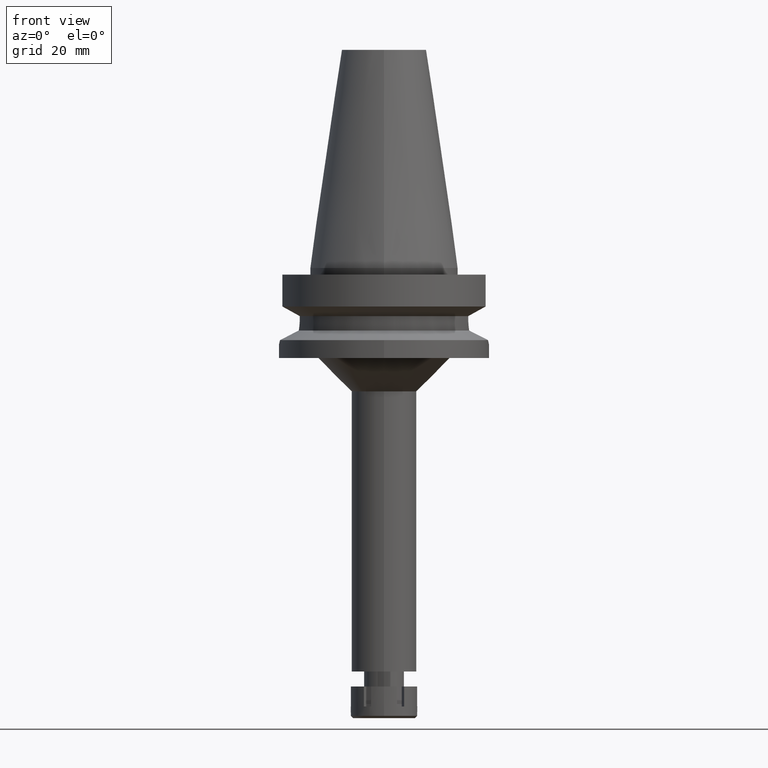
[diagram: clean part render]
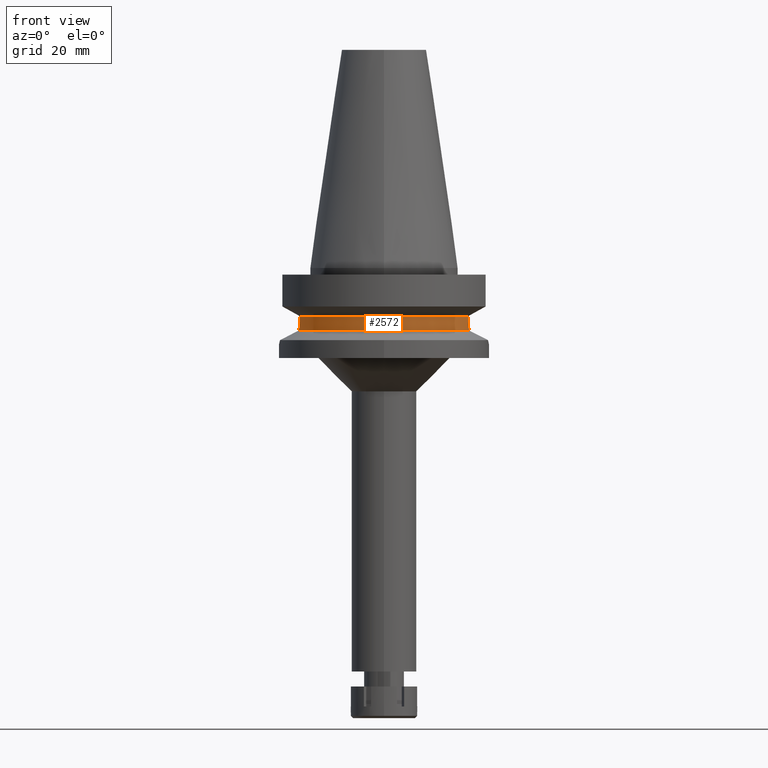
[diagram: same view with one face highlighted and labeled with its STEP entity id]
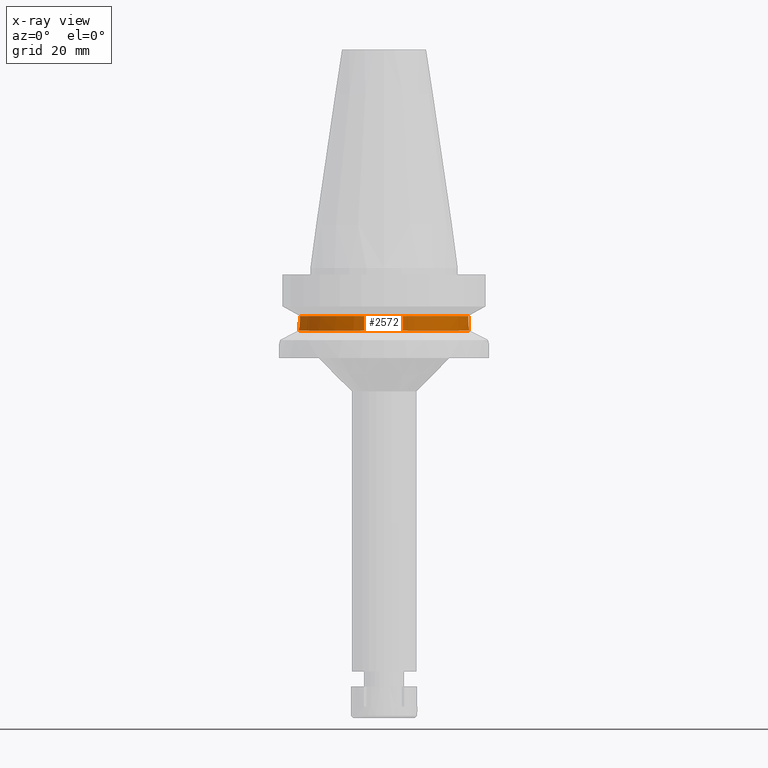
[diagram: x-ray of the same camera — body ghosted, the highlighted face saturated]
A machine part, front view. The second image highlights one B-rep face of the part: STEP entity #2572.
The next image is the same camera in x-ray: the body ghosted, the highlighted face saturated — about 0% of this face is hidden behind the body in this view.
In plain terms, the highlighted cylindrical surface (partial cylindrical patch) has radius 26.5 mm, axis along (0, 0, -1).
Its self-contained STEP definition (entity closure, byte-faithful):
#12 = CARTESIAN_POINT ( 'NONE',  ( 25.27269700110156236, -7.971767412699254152, -16.08147680843536875 ) ) ;
#15 = CIRCLE ( 'NONE', #2923, 26.50000000000000711 ) ;
#48 = CARTESIAN_POINT ( 'NONE',  ( 25.30215890781840216, -7.877570599496765524, -16.61088255778459200 ) ) ;
#54 = CARTESIAN_POINT ( 'NONE',  ( -25.34387143294821954, -7.742373311504515243, -17.15653003748771965 ) ) ;
#66 = CARTESIAN_POINT ( 'NONE',  ( 25.36818832152583170, -7.663695285298411264, -17.48840541843383534 ) ) ;
#91 = CARTESIAN_POINT ( 'NONE',  ( -25.53175183775000079, -7.097862220092999941, -18.74774300138999905 ) ) ;
#104 = CARTESIAN_POINT ( 'NONE',  ( 25.24772266958000344, -8.050000000000000711, -14.45225699861000024 ) ) ;
#122 = CARTESIAN_POINT ( 'NONE',  ( 25.24772216360999977, -8.050001586895000116, -14.45224487333999974 ) ) ;
#233 = B_SPLINE_CURVE_WITH_KNOTS ( 'NONE', 3,
 ( #2616, #1451, #2597, #12, #3424, #3157, #48, #1145, #3391, #860, #1999, #66, #2331, #307 ),
 .UNSPECIFIED., .F., .F.,
 ( 4, 2, 2, 1, 1, 2, 2, 4 ),
 ( 0.0000000000000000000, 0.2499999999999825695, 0.3749999999999737432, 0.4374999999999705791, 0.4687499999999690803, 0.4843749999999682476, 0.4999999999999673594, 1.000000000000000000 ),
 .UNSPECIFIED. ) ;
#307 = CARTESIAN_POINT ( 'NONE',  ( 25.53175183775000079, -7.097862220092999941, -18.74774300138999905 ) ) ;
#313 = CARTESIAN_POINT ( 'NONE',  ( -25.32418399504418005, -7.806358676370348526, -16.91563029435230447 ) ) ;
#366 = CARTESIAN_POINT ( 'NONE',  ( -25.33291713921992994, -7.778013934301806209, -17.02547645170814761 ) ) ;
#612 = DIRECTION ( 'NONE',  ( 0.0000000000000000000, 0.0000000000000000000, -1.000000000000000000 ) ) ;
#671 = DIRECTION ( 'NONE',  ( 0.0000000000000000000, -1.000000000000000000, 0.0000000000000000000 ) ) ;
#681 = EDGE_CURVE ( 'NONE', #3477, #2602, #15, .T. ) ;
#821 = AXIS2_PLACEMENT_3D ( 'NONE', #3454, #612, #671 ) ;
#860 = CARTESIAN_POINT ( 'NONE',  ( 25.31954826170012041, -7.821386849067248015, -16.85495274079940486 ) ) ;
#868 = VERTEX_POINT ( 'NONE', #2439 ) ;
#899 = CARTESIAN_POINT ( 'NONE',  ( -25.37572073956666685, -7.637749019540956752, -17.49807125600464630 ) ) ;
#945 = CARTESIAN_POINT ( 'NONE',  ( 25.24772266958000344, -8.050000000000000711, -14.94999999999999929 ) ) ;
#991 = CARTESIAN_POINT ( 'NONE',  ( 25.53175183775000079, -7.097862220092999941, -18.74774300138999905 ) ) ;
#1011 = DIRECTION ( 'NONE',  ( 0.0000000000000000000, 0.0000000000000000000, -1.000000000000000000 ) ) ;
#1063 = DIRECTION ( 'NONE',  ( -2.936650181684920367E-06, 9.210406947317738836E-06, 0.9999999999532721562 ) ) ;
#1145 = CARTESIAN_POINT ( 'NONE',  ( 25.31206084004277201, -7.845614529398852177, -16.75329855851926908 ) ) ;
#1149 = AXIS2_PLACEMENT_3D ( 'NONE', #2084, #1541, #1485 ) ;
#1154 = ORIENTED_EDGE ( 'NONE', *, *, #2139, .F. ) ;
#1163 = EDGE_CURVE ( 'NONE', #868, #1302, #1432, .T. ) ;
#1193 = CYLINDRICAL_SURFACE ( 'NONE', #821, 26.50000000000000000 ) ;
#1224 = CARTESIAN_POINT ( 'NONE',  ( -25.39163789185657549, -7.584844708125834778, -17.65187641332314428 ) ) ;
#1243 = CARTESIAN_POINT ( 'NONE',  ( -25.35411031743685939, -7.708870715687629271, -17.26994754070161520 ) ) ;
#1302 = VERTEX_POINT ( 'NONE', #991 ) ;
#1432 = CIRCLE ( 'NONE', #1149, 26.50000000000000000 ) ;
#1451 = CARTESIAN_POINT ( 'NONE',  ( 25.24772266958000344, -8.050000000000000711, -15.27000344023669065 ) ) ;
#1485 = DIRECTION ( 'NONE',  ( 0.0000000000000000000, -1.000000000000000000, 0.0000000000000000000 ) ) ;
#1504 = CARTESIAN_POINT ( 'NONE',  ( -25.24772413117000269, -8.049995415907000407, -14.45229202706000038 ) ) ;
#1507 = DIRECTION ( 'NONE',  ( 0.9527442516822307583, -0.3037735849057093818, 0.0000000000000000000 ) ) ;
#1541 = DIRECTION ( 'NONE',  ( 0.0000000000000000000, 0.0000000000000000000, 1.000000000000000000 ) ) ;
#1551 = EDGE_LOOP ( 'NONE', ( #3331, #3041, #2271, #1154, #2198, #2796 ) ) ;
#1786 = DIRECTION ( 'NONE',  ( 1.016496364919000541E-06, 3.188103488054005941E-06, -0.9999999999944013673 ) ) ;
#1807 = LINE ( 'NONE', #3228, #2502 ) ;
#1981 = EDGE_CURVE ( 'NONE', #868, #3007, #2487, .T. ) ;
#1999 = CARTESIAN_POINT ( 'NONE',  ( 25.32122245610153044, -7.815962707354710659, -16.87706809355956850 ) ) ;
#2084 = CARTESIAN_POINT ( 'NONE',  ( 0.0000000000000000000, 0.0000000000000000000, -18.74774300138999905 ) ) ;
#2085 = CARTESIAN_POINT ( 'NONE',  ( 0.0000000000000000000, 1.065333950388000029E-14, -14.45225699861000024 ) ) ;
#2139 = EDGE_CURVE ( 'NONE', #3477, #3066, #3208, .T. ) ;
#2198 = ORIENTED_EDGE ( 'NONE', *, *, #681, .T. ) ;
#2259 = EDGE_CURVE ( 'NONE', #3007, #2602, #1807, .T. ) ;
#2271 = ORIENTED_EDGE ( 'NONE', *, *, #3407, .F. ) ;
#2317 = CARTESIAN_POINT ( 'NONE',  ( -25.32549379169124393, -7.802110623124204558, -16.93240720976742963 ) ) ;
#2331 = CARTESIAN_POINT ( 'NONE',  ( 25.43789037939427189, -7.435491690445102719, -18.11672414067714598 ) ) ;
#2355 = CARTESIAN_POINT ( 'NONE',  ( -25.27268963299689020, -7.973299854895629757, -16.24527810125751515 ) ) ;
#2439 = CARTESIAN_POINT ( 'NONE',  ( -25.53175183775000079, -7.097862220092999941, -18.74774300138999905 ) ) ;
#2487 = B_SPLINE_CURVE_WITH_KNOTS ( 'NONE', 3,
 ( #91, #2603, #3485, #1224, #899, #1243, #54, #366, #2858, #2317, #313, #2355, #3468, #3428 ),
 .UNSPECIFIED., .F., .F.,
 ( 4, 2, 2, 1, 1, 2, 2, 4 ),
 ( 0.0000000000000000000, 0.2500000000000098255, 0.3750000000000158207, 0.4375000000000174860, 0.4687500000000184297, 0.4843750000000189293, 0.5000000000000194289, 1.000000000000000000 ),
 .UNSPECIFIED. ) ;
#2502 = VECTOR ( 'NONE', #1063, 1000.000000000000114 ) ;
#2549 = CARTESIAN_POINT ( 'NONE',  ( -25.24772266958000344, -8.050000000000000711, -14.94999999999999929 ) ) ;
#2572 = ADVANCED_FACE ( 'NONE', ( #3150 ), #1193, .T. ) ;
#2597 = CARTESIAN_POINT ( 'NONE',  ( 25.25396625246038340, -8.030896711159547507, -15.59378553532208755 ) ) ;
#2602 = VERTEX_POINT ( 'NONE', #1504 ) ;
#2603 = CARTESIAN_POINT ( 'NONE',  ( -25.48481549113646594, -7.266697161774357205, -18.43219580570867677 ) ) ;
#2616 = CARTESIAN_POINT ( 'NONE',  ( 25.24772266958000344, -8.050000000000000711, -14.94999999999999929 ) ) ;
#2796 = ORIENTED_EDGE ( 'NONE', *, *, #2259, .F. ) ;
#2858 = CARTESIAN_POINT ( 'NONE',  ( -25.32843481437391375, -7.792567015984550594, -16.96959595518388042 ) ) ;
#2923 = AXIS2_PLACEMENT_3D ( 'NONE', #2085, #1011, #1507 ) ;
#2942 = VECTOR ( 'NONE', #1786, 1000.000000000000114 ) ;
#3007 = VERTEX_POINT ( 'NONE', #2549 ) ;
#3041 = ORIENTED_EDGE ( 'NONE', *, *, #1163, .T. ) ;
#3066 = VERTEX_POINT ( 'NONE', #945 ) ;
#3150 = FACE_OUTER_BOUND ( 'NONE', #1551, .T. ) ;
#3157 = CARTESIAN_POINT ( 'NONE',  ( 25.29454954118293131, -7.902007388337040084, -16.48871296866783354 ) ) ;
#3208 = LINE ( 'NONE', #122, #2942 ) ;
#3228 = CARTESIAN_POINT ( 'NONE',  ( -25.24772266958000344, -8.050000000000000711, -14.94999999999999929 ) ) ;
#3331 = ORIENTED_EDGE ( 'NONE', *, *, #1981, .F. ) ;
#3391 = CARTESIAN_POINT ( 'NONE',  ( 25.31652402624243337, -7.831177078178399142, -16.81429685341538516 ) ) ;
#3407 = EDGE_CURVE ( 'NONE', #3066, #1302, #233, .T. ) ;
#3424 = CARTESIAN_POINT ( 'NONE',  ( 25.28050147970205330, -7.946982733722278702, -16.24437200643366097 ) ) ;
#3428 = CARTESIAN_POINT ( 'NONE',  ( -25.24772266958000344, -8.050000000000000711, -14.94999999999999929 ) ) ;
#3454 = CARTESIAN_POINT ( 'NONE',  ( 0.0000000000000000000, 2.145213798065999842E-14, 75.17000000000000171 ) ) ;
#3468 = CARTESIAN_POINT ( 'NONE',  ( -25.24772266958000344, -8.049999999999982947, -15.58995119469975243 ) ) ;
#3477 = VERTEX_POINT ( 'NONE', #104 ) ;
#3485 = CARTESIAN_POINT ( 'NONE',  ( -25.44391996133642309, -7.408267900270209871, -18.11703146729750813 ) ) ;